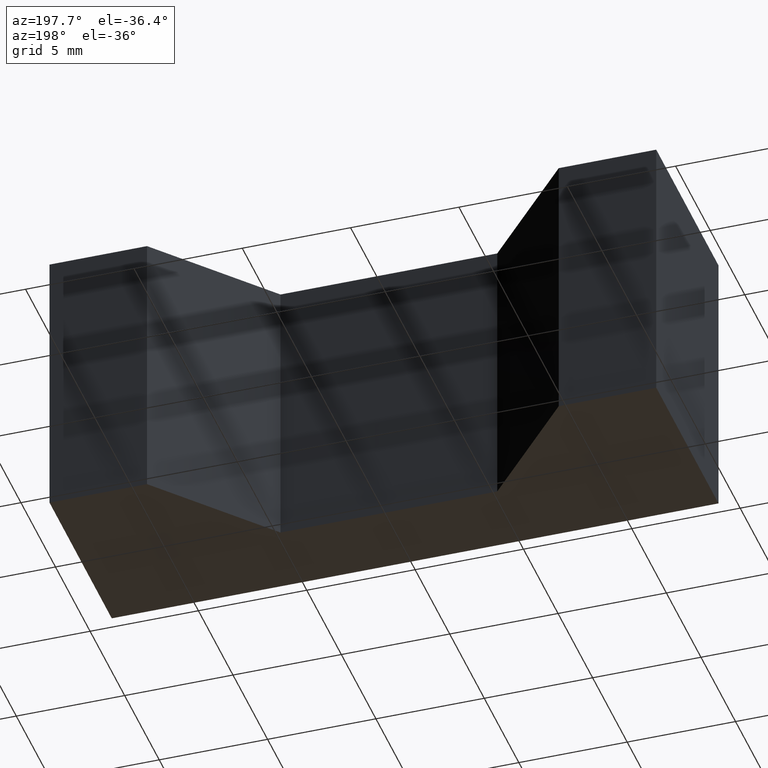
[diagram: clean part render]
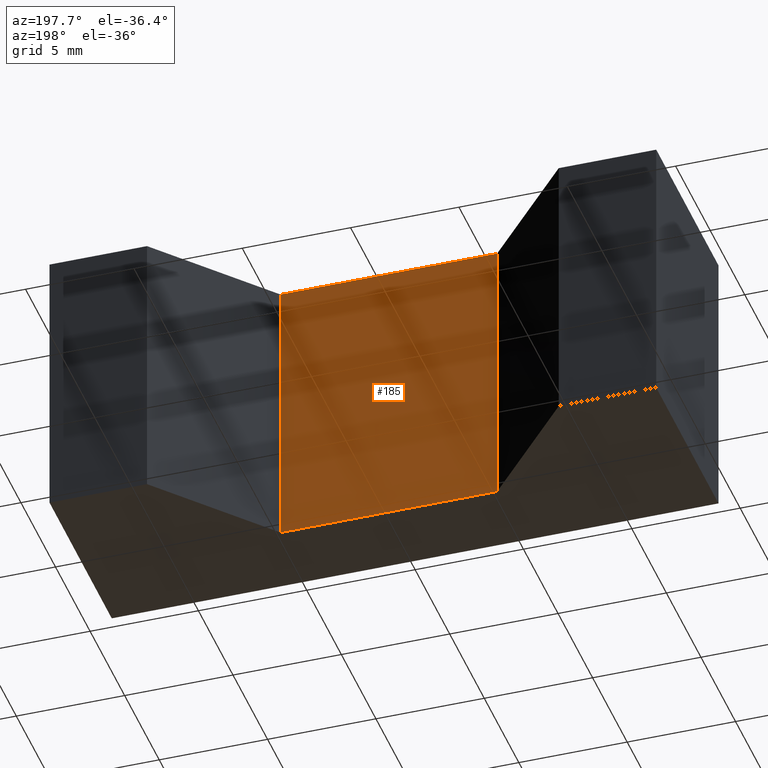
[diagram: same view with one face highlighted and labeled with its STEP entity id]
A machine part, auxiliary view. The second image highlights one B-rep face of the part: STEP entity #185.
In plain terms, the highlighted planar face has unit normal (0, 1, 0).
Its self-contained STEP definition (entity closure, byte-faithful):
#19=FACE_OUTER_BOUND('',#29,.T.);
#29=EDGE_LOOP('',(#136,#137,#138,#139));
#44=LINE('',#291,#68);
#46=LINE('',#295,#70);
#47=LINE('',#297,#71);
#48=LINE('',#298,#72);
#68=VECTOR('',#241,10.);
#70=VECTOR('',#245,10.);
#71=VECTOR('',#246,10.);
#72=VECTOR('',#247,10.);
#90=VERTEX_POINT('',#288);
#91=VERTEX_POINT('',#290);
#92=VERTEX_POINT('',#294);
#93=VERTEX_POINT('',#296);
#108=EDGE_CURVE('',#91,#90,#44,.T.);
#110=EDGE_CURVE('',#90,#92,#46,.T.);
#111=EDGE_CURVE('',#93,#92,#47,.T.);
#112=EDGE_CURVE('',#91,#93,#48,.T.);
#136=ORIENTED_EDGE('',*,*,#110,.T.);
#137=ORIENTED_EDGE('',*,*,#111,.F.);
#138=ORIENTED_EDGE('',*,*,#112,.F.);
#139=ORIENTED_EDGE('',*,*,#108,.T.);
#175=PLANE('',#218);
#185=ADVANCED_FACE('',(#19),#175,.T.);
#218=AXIS2_PLACEMENT_3D('',#293,#243,#244);
#241=DIRECTION('',(0.,0.,1.));
#243=DIRECTION('center_axis',(0.,1.,0.));
#244=DIRECTION('ref_axis',(0.,0.,1.));
#245=DIRECTION('',(1.,0.,0.));
#246=DIRECTION('',(0.,0.,1.));
#247=DIRECTION('',(1.,0.,0.));
#288=CARTESIAN_POINT('',(-5.,3.8,13.));
#290=CARTESIAN_POINT('',(-5.,3.8,0.));
#291=CARTESIAN_POINT('',(-5.,3.8,0.));
#293=CARTESIAN_POINT('Origin',(-5.,3.8,0.));
#294=CARTESIAN_POINT('',(5.,3.8,13.));
#295=CARTESIAN_POINT('',(-5.,3.8,13.));
#296=CARTESIAN_POINT('',(5.,3.8,0.));
#297=CARTESIAN_POINT('',(5.,3.8,0.));
#298=CARTESIAN_POINT('',(-5.,3.8,0.));